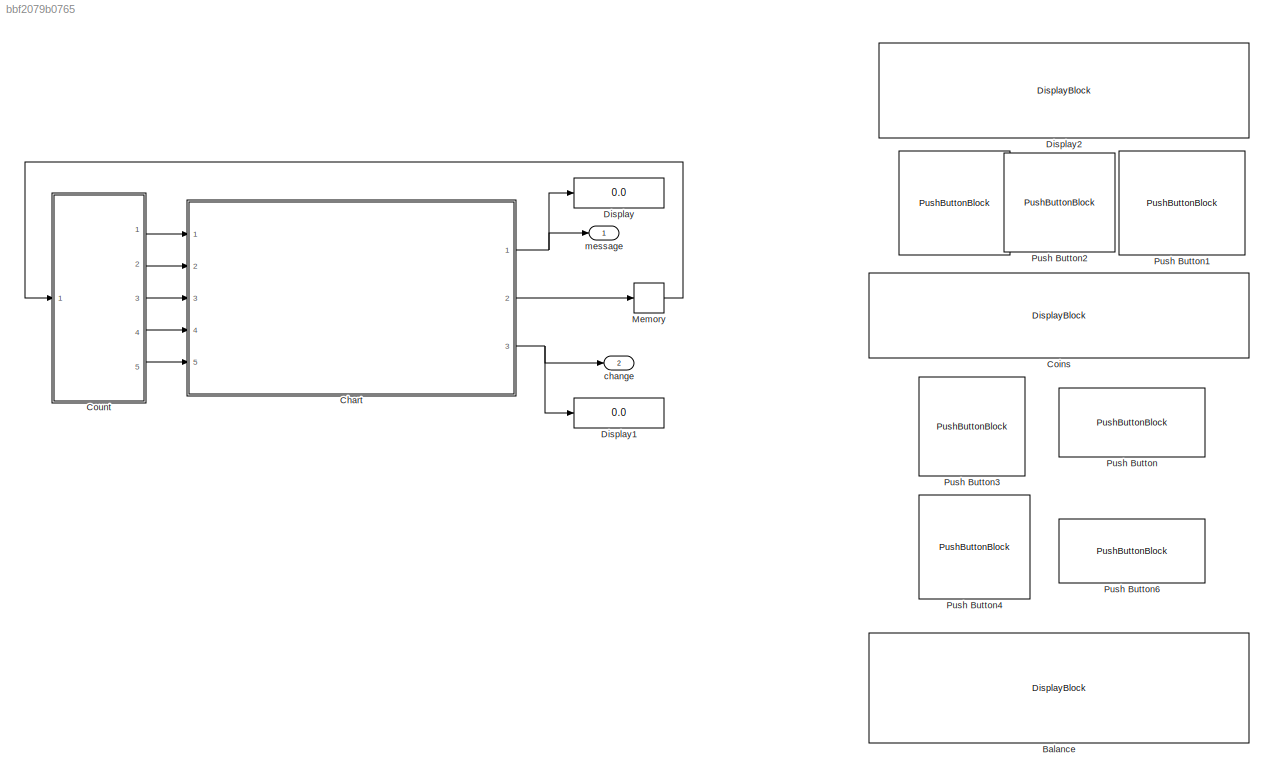
MODEL slx_bbf2079b0765
KIND model
CONFIG AbsTol = auto
CONFIG EnableMultiTasking = off
CONFIG FixedStep = auto
CONFIG MaxStep = auto
CONFIG MinStep = auto
CONFIG RelTol = 1e-3
CONFIG SampleTimeConstraint = Unconstrained
CONFIG Solver = VariableStepAuto
CONFIG SolverName = VariableStepAuto
CONFIG StartTime = 0.0
CONFIG StopTime = 1000
BLOCK [PushButtonBlock]  
  ButtonText = 1kr
BLOCK [DisplayBlock] Balance
  Format = short
  LabelPosition = Hide
  Transparency = 1
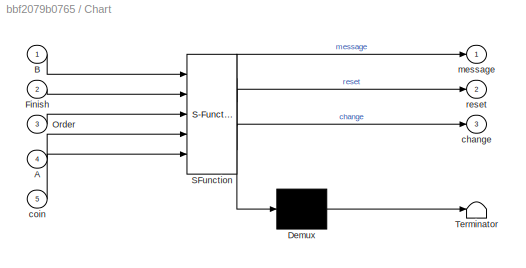
BLOCK [SubSystem] Chart
  ErrorFcn = Stateflow.Translate.translate
  PermitHierarchicalResolution = ExplicitOnly
  Ports = [5, 3]
  RequestExecContextInheritance = off
  SFBlockType = Chart
  TreatAsAtomicUnit = on
BLOCK [Demux] Chart/ Demux 
  Outputs = 1
  Ports = [1, 1]
BLOCK [S-Function] Chart/ SFunction 
  EnableBusSupport = on
  FunctionName = sf_sfun
  PortCounts = [5 4]
  Ports = [5, 4]
  SFcnIsStateOwnerBlock = off
  SFunctionDeploymentMode = off
  Tag = Stateflow S-Function 3
BLOCK [Terminator] Chart/ Terminator 
BLOCK [Inport] Chart/A
  Port = 4
BLOCK [Inport] Chart/B
BLOCK [Inport] Chart/Finish
  Port = 2
BLOCK [Inport] Chart/Order
  Port = 3
BLOCK [Outport] Chart/change
  Port = 3
BLOCK [Inport] Chart/coin
  Port = 5
BLOCK [Outport] Chart/message
BLOCK [Outport] Chart/reset
  Port = 2
BLOCK [DisplayBlock] Coins
  Format = short
  LabelPosition = Hide
  Transparency = 1
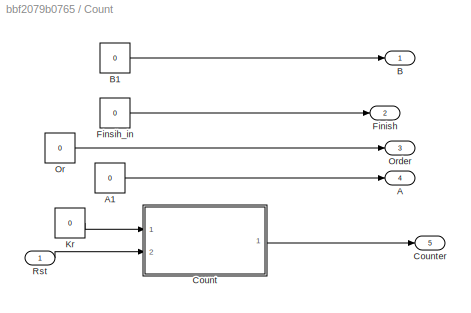
BLOCK [SubSystem] Count
  Ports = [1, 5]
  RequestExecContextInheritance = off
BLOCK [Outport] Count/A
  Port = 4
BLOCK [Constant] Count/A1
  Value = 0
BLOCK [Outport] Count/B
BLOCK [Constant] Count/B1
  Value = 0
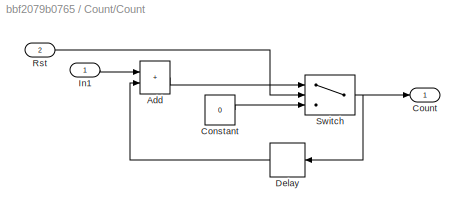
BLOCK [SubSystem] Count/Count
  Ports = [2, 1]
  RequestExecContextInheritance = off
BLOCK [Sum] Count/Count/Add
  IconShape = rectangular
  Ports = [2, 1]
BLOCK [Constant] Count/Count/Constant
  Value = 0
BLOCK [Outport] Count/Count/Count
BLOCK [Delay] Count/Count/Delay
  DelayLength = 1
  InputPortMap = u0
  Ports = [1, 1]
BLOCK [Inport] Count/Count/In1
BLOCK [Inport] Count/Count/Rst
  Port = 2
BLOCK [Switch] Count/Count/Switch
  Criteria = u2 > Threshold
  InputSameDT = off
  SaturateOnIntegerOverflow = off
BLOCK [Outport] Count/Counter
  Port = 5
BLOCK [Outport] Count/Finish
  Port = 2
BLOCK [Constant] Count/Finsih_in
  Value = 0
BLOCK [Constant] Count/Kr
  OutDataTypeStr = double
  Value = 0
BLOCK [Constant] Count/Or
  Value = 0
BLOCK [Outport] Count/Order
  Port = 3
BLOCK [Inport] Count/Rst
BLOCK [Display] Display
  Decimation = 1
  Ports = [1]
BLOCK [Display] Display1
  Decimation = 1
  Ports = [1]
BLOCK [DisplayBlock] Display2
  Format = short
  LabelPosition = Hide
  Transparency = 1
BLOCK [Memory] Memory
BLOCK [PushButtonBlock] Push Button
  ButtonText = Order
BLOCK [PushButtonBlock] Push Button1
  ButtonText = 10kr
  OnValue = 10
BLOCK [PushButtonBlock] Push Button2
  ButtonText = 5kr
  OnValue = 5
BLOCK [PushButtonBlock] Push Button3
  ButtonText = A
  OnValue = 100
BLOCK [PushButtonBlock] Push Button4
  ButtonText = B
  OnValue = 100
BLOCK [PushButtonBlock] Push Button6
  ButtonText = Finish
BLOCK [Outport] change
  Port = 2
BLOCK [Outport] message
NET Chart:1 -> Display:1, message:1
LINE Chart:2 -> Memory:1
NET Chart:3 -> Display1:1, change:1
LINE Count/A1:1 -> Count/A:1
LINE Count/B1:1 -> Count/B:1
LINE Count/Count/Add:1 -> Count/Count/Switch:1
LINE Count/Count/Constant:1 -> Count/Count/Switch:3
LINE Count/Count/Delay:1 -> Count/Count/Add:2
LINE Count/Count/In1:1 -> Count/Count/Add:1
LINE Count/Count/Rst:1 -> Count/Count/Switch:2
NET Count/Count/Switch:1 -> Count/Count/Count:1, Count/Count/Delay:1
LINE Count/Count:1 -> Count/Counter:1
LINE Count/Finsih_in:1 -> Count/Finish:1
LINE Count/Kr:1 -> Count/Count:1
LINE Count/Or:1 -> Count/Order:1
LINE Count/Rst:1 -> Count/Count:2
LINE Count:1 -> Chart:1
LINE Count:2 -> Chart:2
LINE Count:3 -> Chart:3
LINE Count:4 -> Chart:4
LINE Count:5 -> Chart:5
LINE Memory:1 -> Count:1
note: NET lines group one-source signal fan-out (src -> all destinations, sorted); 1:1 wires keep LINE
CHART Chart states=9 transitions=18
  STATE_LABEL 'Order_State\nmessage = "Enter A or B";'
  STATE_LABEL 'Inserting_State\nmessage = "Insert Coins!";\ndu:coins=coin;\nex:change=change+coins;\n\n'
  STATE_LABEL 'Idle_State\nen:coins=0;reset=1;change=0;\ndu:coins=coin; \nmessage="Welcome";\n'
  STATE_LABEL 'Product_A\nen:reset=0;change=change-8;\nex:reset=1;\n'
  STATE_LABEL 'Return_Change\nmessage="Collect Change!"\n'
  STATE_LABEL 'Prdocut_B\nen:reset=0;change=change-6;\nex:reset=1;'
  STATE_LABEL 'Insufficient_Balance\nmessage="Sorry Try Again";'
  STATE_LABEL 'Order_More_Snacks\n'
  STATE_LABEL 'Finish\nmessage="Thank You!";\nreset=0'
CHART  states=0 transitions=0
